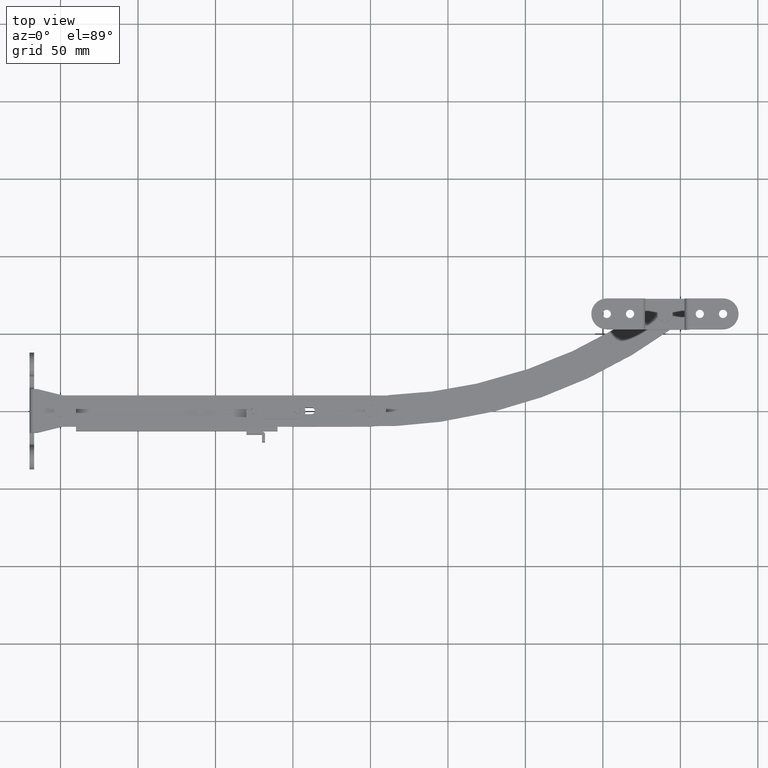
[diagram: clean part render]
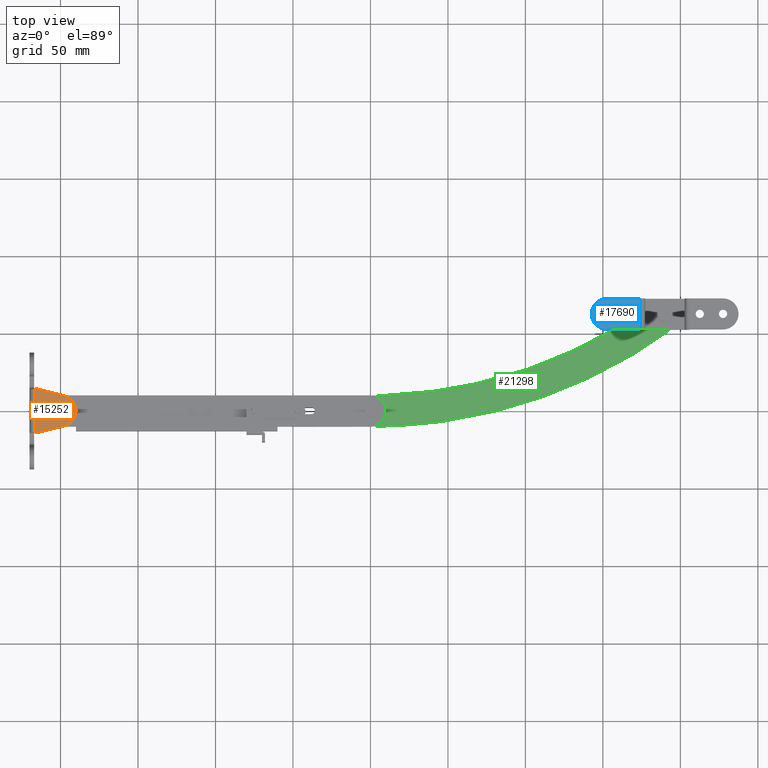
[diagram: same view with three faces highlighted in distinct colors, each labeled with its STEP entity id]
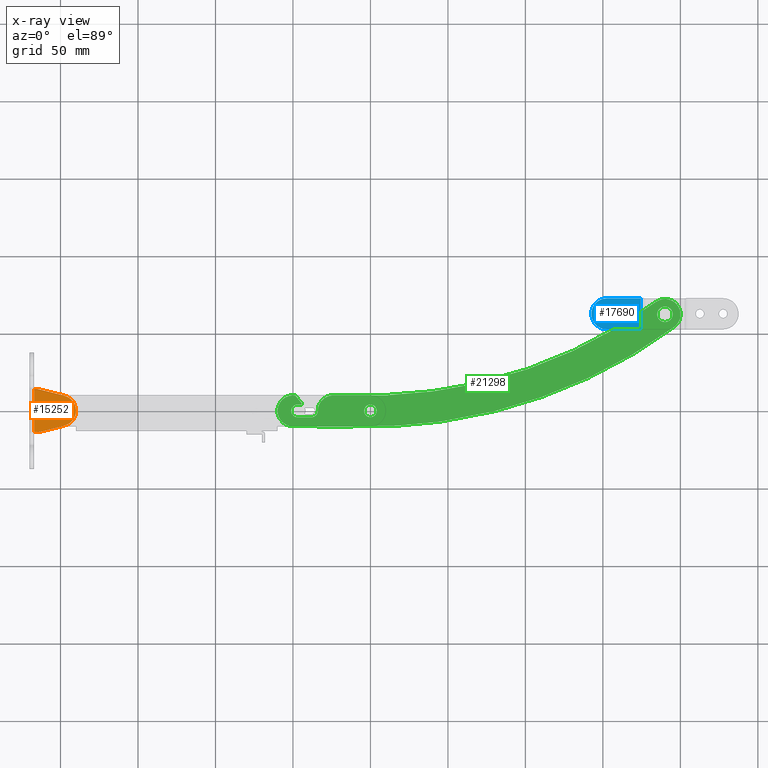
[diagram: x-ray of the same camera — body ghosted, the three highlighted faces saturated]
A machine part, top view with three faces highlighted in distinct colors.
The next image is the same camera in x-ray (body ghosted, the three faces saturated) — at least one of them is partly hidden behind the body in this view.
Their STEP definitions:

[orange] entity #15252 — the highlighted face is a freeform B-spline surface patch.
#13638=CARTESIAN_POINT('',(3.157640842385284,2.455464174142392,11.0));
#13639=VERTEX_POINT('',#13638);
#13640=CARTESIAN_POINT('',(4.0,0.0,11.0));
#13641=VERTEX_POINT('',#13640);
#13642=CARTESIAN_POINT('',(3.157640842385284,2.455464174142392,11.000000000000002));
#13643=CARTESIAN_POINT('',(4.000000000000000,1.372219829529342,11.000000000000002));
#13644=CARTESIAN_POINT('',(4.0,0.0,11.0));
#13652=(BOUNDED_CURVE()B_SPLINE_CURVE(2,(#13642,#13643,#13644),.UNSPECIFIED.,.F.,.U.)B_SPLINE_CURVE_WITH_KNOTS((3,3),(0.893802246703380,1.0),.UNSPECIFIED.)CURVE()GEOMETRIC_REPRESENTATION_ITEM()RATIONAL_B_SPLINE_CURVE((0.856866828135584,0.875581592824784,1.0))REPRESENTATION_ITEM(''));
#13653=EDGE_CURVE('',#13639,#13641,#13652,.T.);
#13696=CARTESIAN_POINT('',(-2.803635695695737,2.853003134561376,11.0));
#13697=VERTEX_POINT('',#13696);
#13703=CARTESIAN_POINT('',(-4.0,0.0,11.0));
#13704=VERTEX_POINT('',#13703);
#13705=CARTESIAN_POINT('',(-4.0,0.0,11.0));
#13706=CARTESIAN_POINT('',(-4.000000000000001,1.677340329298639,11.000000000000002));
#13707=CARTESIAN_POINT('',(-2.803635695695736,2.853003134561376,11.0));
#13715=(BOUNDED_CURVE()B_SPLINE_CURVE(2,(#13705,#13706,#13707),.UNSPECIFIED.,.F.,.U.)B_SPLINE_CURVE_WITH_KNOTS((3,3),(0.500000000000000,0.626316829599056),.UNSPECIFIED.)CURVE()GEOMETRIC_REPRESENTATION_ITEM()RATIONAL_B_SPLINE_CURVE((1.0,0.852010628753688,0.853569643028911))REPRESENTATION_ITEM(''));
#13716=EDGE_CURVE('',#13704,#13697,#13715,.T.);
#13718=CARTESIAN_POINT('',(4.0,0.0,11.0));
#13719=CARTESIAN_POINT('',(4.000000000000000,-4.000000000000000,11.0));
#13720=CARTESIAN_POINT('',(0.0,-4.0,11.0));
#13721=CARTESIAN_POINT('',(-4.000000000000000,-4.000000000000000,11.0));
#13722=CARTESIAN_POINT('',(-4.0,0.0,11.0));
#13730=(BOUNDED_CURVE()B_SPLINE_CURVE(2,(#13718,#13719,#13720,#13721,#13722),.UNSPECIFIED.,.F.,.U.)B_SPLINE_CURVE_WITH_KNOTS((3,2,3),(0.0,0.250000000000000,0.500000000000000),.UNSPECIFIED.)CURVE()GEOMETRIC_REPRESENTATION_ITEM()RATIONAL_B_SPLINE_CURVE((1.0,0.707106781186548,1.0,0.707106781186548,1.0))REPRESENTATION_ITEM(''));
#13731=EDGE_CURVE('',#13641,#13704,#13730,.T.);
#13754=CARTESIAN_POINT('',(-2.803635695695736,2.853003134561376,11.0));
#13755=CARTESIAN_POINT('',(-1.636442091530063,4.000000000000001,10.999999999999998));
#13756=CARTESIAN_POINT('',(0.0,4.0,11.0));
#13757=CARTESIAN_POINT('',(1.956569354088311,4.0,11.000000000000002));
#13758=CARTESIAN_POINT('',(3.157640842385284,2.455464174142392,11.000000000000002));
#13766=(BOUNDED_CURVE()B_SPLINE_CURVE(2,(#13754,#13755,#13756,#13757,#13758),.UNSPECIFIED.,.F.,.U.)B_SPLINE_CURVE_WITH_KNOTS((3,2,3),(0.626316829599056,0.750000000000000,0.893802246703380),.UNSPECIFIED.)CURVE()GEOMETRIC_REPRESENTATION_ITEM()RATIONAL_B_SPLINE_CURVE((0.853569643028911,0.855096152432859,1.0,0.831525188361763,0.856866828135584))REPRESENTATION_ITEM(''));
#13767=EDGE_CURVE('',#13697,#13639,#13766,.T.);
#13900=CARTESIAN_POINT('',(-17.0,-14.0,11.0));
#13901=VERTEX_POINT('',#13900);
#13915=CARTESIAN_POINT('',(-17.0,14.0,11.0));
#13916=VERTEX_POINT('',#13915);
#13917=CARTESIAN_POINT('',(-17.0,14.0,11.0));
#13918=CARTESIAN_POINT('',(-17.0,-14.0,11.0));
#13919=QUASI_UNIFORM_CURVE('',1,(#13917,#13918),.UNSPECIFIED.,.F.,.U.);
#13920=EDGE_CURVE('',#13916,#13901,#13919,.T.);
#14079=CARTESIAN_POINT('',(-15.000076807082349,14.0,11.0));
#14080=VERTEX_POINT('',#14079);
#14081=CARTESIAN_POINT('',(2.410058711234305,9.705236576632409,11.0));
#14082=VERTEX_POINT('',#14081);
#14083=CARTESIAN_POINT('',(-15.000076807082349,14.0,11.0));
#14084=CARTESIAN_POINT('',(2.410058711234305,9.705236576632409,11.0));
#14085=QUASI_UNIFORM_CURVE('',1,(#14083,#14084),.UNSPECIFIED.,.F.,.U.);
#14086=EDGE_CURVE('',#14080,#14082,#14085,.T.);
#14115=CARTESIAN_POINT('',(2.395019000000000,-9.708954000000000,11.0));
#14116=VERTEX_POINT('',#14115);
#14117=CARTESIAN_POINT('',(-15.000045999999999,-14.0,11.0));
#14118=VERTEX_POINT('',#14117);
#14119=CARTESIAN_POINT('',(2.395019000000000,-9.708954000000000,11.0));
#14120=CARTESIAN_POINT('',(-15.000045999999999,-14.0,11.0));
#14121=QUASI_UNIFORM_CURVE('',1,(#14119,#14120),.UNSPECIFIED.,.F.,.U.);
#14122=EDGE_CURVE('',#14116,#14118,#14121,.T.);
#14164=CARTESIAN_POINT('',(2.410058711234305,9.705236576632409,11.0));
#14165=CARTESIAN_POINT('',(10.006059581398373,7.818955515734333,11.0));
#14166=CARTESIAN_POINT('',(9.999996423751082,-0.007743828875747,11.0));
#14167=CARTESIAN_POINT('',(9.993933266103793,-7.834443173485833,11.0));
#14168=CARTESIAN_POINT('',(2.395019000000000,-9.708954000000000,11.0));
#14176=(BOUNDED_CURVE()B_SPLINE_CURVE(2,(#14164,#14165,#14166,#14167,#14168),.UNSPECIFIED.,.F.,.U.)B_SPLINE_CURVE_WITH_KNOTS((3,2,3),(0.0,0.500000000000000,1.0),.UNSPECIFIED.)CURVE()GEOMETRIC_REPRESENTATION_ITEM()RATIONAL_B_SPLINE_CURVE((1.0,0.787481433194190,1.0,0.787481433194190,1.0))REPRESENTATION_ITEM(''));
#14177=EDGE_CURVE('',#14082,#14116,#14176,.T.);
#15212=CARTESIAN_POINT('',(-15.000045999999999,-14.0,11.0));
#15213=CARTESIAN_POINT('',(-17.0,-14.0,11.0));
#15214=QUASI_UNIFORM_CURVE('',1,(#15212,#15213),.UNSPECIFIED.,.F.,.U.);
#15215=EDGE_CURVE('',#14118,#13901,#15214,.T.);
#15229=CARTESIAN_POINT('',(-18.348649769035131,-15.398599945730570,11.0));
#15230=CARTESIAN_POINT('',(-18.348649769035131,15.398600696749090,11.0));
#15231=CARTESIAN_POINT('',(11.348646916982551,-15.398599945730570,11.0));
#15232=CARTESIAN_POINT('',(11.348646916982551,15.398600696749090,11.0));
#15233=B_SPLINE_SURFACE_WITH_KNOTS('',1,1,((#15229,#15231),(#15230,#15232)),.UNSPECIFIED.,.F.,.F.,.U.,(2,2),(2,2),(0.0,30.797200642479670),(0.0,29.697296686017690),.UNSPECIFIED.);
#15234=CARTESIAN_POINT('',(-15.000076807082349,14.0,11.0));
#15235=CARTESIAN_POINT('',(-17.0,14.0,11.0));
#15236=QUASI_UNIFORM_CURVE('',1,(#15234,#15235),.UNSPECIFIED.,.F.,.U.);
#15237=EDGE_CURVE('',#14080,#13916,#15236,.T.);
#15238=ORIENTED_EDGE('',*,*,#15237,.T.);
#15239=ORIENTED_EDGE('',*,*,#13920,.T.);
#15240=ORIENTED_EDGE('',*,*,#15215,.F.);
#15241=ORIENTED_EDGE('',*,*,#14122,.F.);
#15242=ORIENTED_EDGE('',*,*,#14177,.F.);
#15243=ORIENTED_EDGE('',*,*,#14086,.F.);
#15244=EDGE_LOOP('',(#15238,#15239,#15240,#15241,#15242,#15243));
#15245=FACE_OUTER_BOUND('',#15244,.T.);
#15246=ORIENTED_EDGE('',*,*,#13731,.T.);
#15247=ORIENTED_EDGE('',*,*,#13716,.T.);
#15248=ORIENTED_EDGE('',*,*,#13767,.T.);
#15249=ORIENTED_EDGE('',*,*,#13653,.T.);
#15250=EDGE_LOOP('',(#15246,#15247,#15248,#15249));
#15251=FACE_BOUND('',#15250,.T.);
#15252=ADVANCED_FACE('',(#15245,#15251),#15233,.F.);

[blue] entity #17690 — the highlighted face is a freeform B-spline surface patch.
#15709=CARTESIAN_POINT('',(352.701450635846810,59.684120784553983,20.0));
#15710=VERTEX_POINT('',#15709);
#15716=CARTESIAN_POINT('',(355.189671999999970,62.329178000000098,20.0));
#15717=VERTEX_POINT('',#15716);
#15718=CARTESIAN_POINT('',(355.189671999999970,62.329178000000098,20.0));
#15719=CARTESIAN_POINT('',(355.189672000000090,59.836306934180520,20.000000000000007));
#15720=CARTESIAN_POINT('',(352.701450635846750,59.684120784553983,20.0));
#15728=(BOUNDED_CURVE()B_SPLINE_CURVE(2,(#15718,#15719,#15720),.UNSPECIFIED.,.F.,.U.)B_SPLINE_CURVE_WITH_KNOTS((3,3),(0.500000000000000,0.739332961448815),.UNSPECIFIED.)CURVE()GEOMETRIC_REPRESENTATION_ITEM()RATIONAL_B_SPLINE_CURVE((1.0,0.719603994212403,0.976072039973323))REPRESENTATION_ITEM(''));
#15729=EDGE_CURVE('',#15717,#15710,#15728,.T.);
#15731=CARTESIAN_POINT('',(352.226881271014580,64.960653244014509,20.0));
#15732=VERTEX_POINT('',#15731);
#15733=CARTESIAN_POINT('',(352.226881271014520,64.960653244014523,19.999999999999996));
#15734=CARTESIAN_POINT('',(352.382728075701890,64.979178000000090,20.000000000000004));
#15735=CARTESIAN_POINT('',(352.539672000000110,64.979178000000090,20.0));
#15736=CARTESIAN_POINT('',(355.189672000000140,64.979178000000090,19.999999999999996));
#15737=CARTESIAN_POINT('',(355.189671999999970,62.329178000000098,20.0));
#15745=(BOUNDED_CURVE()B_SPLINE_CURVE(2,(#15733,#15734,#15735,#15736,#15737),.UNSPECIFIED.,.F.,.U.)B_SPLINE_CURVE_WITH_KNOTS((3,2,3),(0.229562472597877,0.250000000000000,0.500000000000000),.UNSPECIFIED.)CURVE()GEOMETRIC_REPRESENTATION_ITEM()RATIONAL_B_SPLINE_CURVE((0.956026752389025,0.976055947258416,1.0,0.707106781186548,1.0))REPRESENTATION_ITEM(''));
#15746=EDGE_CURVE('',#15732,#15717,#15745,.T.);
#15776=CARTESIAN_POINT('',(349.889672000000020,62.329178000000098,20.0));
#15777=VERTEX_POINT('',#15776);
#15778=CARTESIAN_POINT('',(349.889672000000020,62.329178000000098,20.0));
#15779=CARTESIAN_POINT('',(349.889672000000080,64.682840480899756,19.999999999999996));
#15780=CARTESIAN_POINT('',(352.226881271014690,64.960653244014509,20.000000000000004));
#15788=(BOUNDED_CURVE()B_SPLINE_CURVE(2,(#15778,#15779,#15780),.UNSPECIFIED.,.F.,.U.)B_SPLINE_CURVE_WITH_KNOTS((3,3),(0.0,0.229562472597877),.UNSPECIFIED.)CURVE()GEOMETRIC_REPRESENTATION_ITEM()RATIONAL_B_SPLINE_CURVE((1.0,0.731050833928131,0.956026752389025))REPRESENTATION_ITEM(''));
#15789=EDGE_CURVE('',#15777,#15732,#15788,.T.);
#15791=CARTESIAN_POINT('',(352.701450635846750,59.684120784553983,20.0));
#15792=CARTESIAN_POINT('',(352.620636828837690,59.679178000000100,20.000000000000004));
#15793=CARTESIAN_POINT('',(352.539672000000110,59.679178000000100,20.0));
#15794=CARTESIAN_POINT('',(349.889671999999960,59.679178000000100,19.999999999999996));
#15795=CARTESIAN_POINT('',(349.889672000000020,62.329178000000098,20.0));
#15803=(BOUNDED_CURVE()B_SPLINE_CURVE(2,(#15791,#15792,#15793,#15794,#15795),.UNSPECIFIED.,.F.,.U.)B_SPLINE_CURVE_WITH_KNOTS((3,2,3),(0.739332961448815,0.750000000000000,1.0),.UNSPECIFIED.)CURVE()GEOMETRIC_REPRESENTATION_ITEM()RATIONAL_B_SPLINE_CURVE((0.976072039973323,0.987502786974145,1.0,0.707106781186548,1.0))REPRESENTATION_ITEM(''));
#15804=EDGE_CURVE('',#15710,#15777,#15803,.T.);
#16037=CARTESIAN_POINT('',(367.701450635846700,59.684120784553983,20.0));
#16038=VERTEX_POINT('',#16037);
#16044=CARTESIAN_POINT('',(370.189671999999970,62.329178000000098,20.0));
#16045=VERTEX_POINT('',#16044);
#16046=CARTESIAN_POINT('',(370.189671999999970,62.329178000000098,20.0));
#16047=CARTESIAN_POINT('',(370.189671999999920,59.836306934180527,20.000000000000004));
#16048=CARTESIAN_POINT('',(367.701450635846700,59.684120784553983,20.000000000000004));
#16056=(BOUNDED_CURVE()B_SPLINE_CURVE(2,(#16046,#16047,#16048),.UNSPECIFIED.,.F.,.U.)B_SPLINE_CURVE_WITH_KNOTS((3,3),(0.500000000000000,0.739332961448813),.UNSPECIFIED.)CURVE()GEOMETRIC_REPRESENTATION_ITEM()RATIONAL_B_SPLINE_CURVE((1.0,0.719603994212405,0.976072039973318))REPRESENTATION_ITEM(''));
#16057=EDGE_CURVE('',#16045,#16038,#16056,.T.);
#16059=CARTESIAN_POINT('',(367.226881271014580,64.960653244014509,20.0));
#16060=VERTEX_POINT('',#16059);
#16061=CARTESIAN_POINT('',(367.226881271014520,64.960653244014509,20.0));
#16062=CARTESIAN_POINT('',(367.382728075701830,64.979178000000090,20.000000000000004));
#16063=CARTESIAN_POINT('',(367.539672000000000,64.979178000000090,20.0));
#16064=CARTESIAN_POINT('',(370.189671999999920,64.979178000000090,19.999999999999996));
#16065=CARTESIAN_POINT('',(370.189671999999970,62.329178000000098,20.0));
#16073=(BOUNDED_CURVE()B_SPLINE_CURVE(2,(#16061,#16062,#16063,#16064,#16065),.UNSPECIFIED.,.F.,.U.)B_SPLINE_CURVE_WITH_KNOTS((3,2,3),(0.229562472597879,0.250000000000000,0.500000000000000),.UNSPECIFIED.)CURVE()GEOMETRIC_REPRESENTATION_ITEM()RATIONAL_B_SPLINE_CURVE((0.956026752389028,0.976055947258418,1.0,0.707106781186548,1.0))REPRESENTATION_ITEM(''));
#16074=EDGE_CURVE('',#16060,#16045,#16073,.T.);
#16104=CARTESIAN_POINT('',(364.889672000000020,62.329178000000098,20.0));
#16105=VERTEX_POINT('',#16104);
#16106=CARTESIAN_POINT('',(364.889672000000020,62.329178000000098,20.0));
#16107=CARTESIAN_POINT('',(364.889672000000020,64.682840480899785,19.999999999999996));
#16108=CARTESIAN_POINT('',(367.226881271014580,64.960653244014509,19.999999999999996));
#16116=(BOUNDED_CURVE()B_SPLINE_CURVE(2,(#16106,#16107,#16108),.UNSPECIFIED.,.F.,.U.)B_SPLINE_CURVE_WITH_KNOTS((3,3),(0.0,0.229562472597879),.UNSPECIFIED.)CURVE()GEOMETRIC_REPRESENTATION_ITEM()RATIONAL_B_SPLINE_CURVE((1.0,0.731050833928129,0.956026752389028))REPRESENTATION_ITEM(''));
#16117=EDGE_CURVE('',#16105,#16060,#16116,.T.);
#16119=CARTESIAN_POINT('',(367.701450635846700,59.684120784553976,20.0));
#16120=CARTESIAN_POINT('',(367.620636828837630,59.679178000000100,20.000000000000004));
#16121=CARTESIAN_POINT('',(367.539672000000000,59.679178000000100,20.0));
#16122=CARTESIAN_POINT('',(364.889671999999960,59.679178000000100,19.999999999999996));
#16123=CARTESIAN_POINT('',(364.889672000000020,62.329178000000098,20.0));
#16131=(BOUNDED_CURVE()B_SPLINE_CURVE(2,(#16119,#16120,#16121,#16122,#16123),.UNSPECIFIED.,.F.,.U.)B_SPLINE_CURVE_WITH_KNOTS((3,2,3),(0.739332961448812,0.750000000000000,1.0),.UNSPECIFIED.)CURVE()GEOMETRIC_REPRESENTATION_ITEM()RATIONAL_B_SPLINE_CURVE((0.976072039973318,0.987502786974142,1.0,0.707106781186548,1.0))REPRESENTATION_ITEM(''));
#16132=EDGE_CURVE('',#16038,#16105,#16131,.T.);
#17087=CARTESIAN_POINT('',(352.539672000000110,52.329178000000091,20.0));
#17088=VERTEX_POINT('',#17087);
#17094=CARTESIAN_POINT('',(352.539672000000110,72.329178000000084,20.0));
#17095=VERTEX_POINT('',#17094);
#17096=CARTESIAN_POINT('',(352.539672000000110,72.329178000000198,20.0));
#17097=CARTESIAN_POINT('',(342.539672000000000,72.329178000000198,19.999999999999996));
#17098=CARTESIAN_POINT('',(342.539672000000000,62.329178000000198,20.0));
#17099=CARTESIAN_POINT('',(342.539672000000000,52.329178000000198,19.999999999999996));
#17100=CARTESIAN_POINT('',(352.539672000000110,52.329178000000198,20.0));
#17108=(BOUNDED_CURVE()B_SPLINE_CURVE(2,(#17096,#17097,#17098,#17099,#17100),.UNSPECIFIED.,.F.,.U.)B_SPLINE_CURVE_WITH_KNOTS((3,2,3),(0.0,0.500000000000000,1.0),.UNSPECIFIED.)CURVE()GEOMETRIC_REPRESENTATION_ITEM()RATIONAL_B_SPLINE_CURVE((1.0,0.707106781186548,1.0,0.707106781186548,1.0))REPRESENTATION_ITEM(''));
#17109=EDGE_CURVE('',#17095,#17088,#17108,.T.);
#17124=CARTESIAN_POINT('',(374.289672209439520,52.329178000000091,20.0));
#17125=VERTEX_POINT('',#17124);
#17126=CARTESIAN_POINT('',(374.289672209439520,52.329178000000091,20.0));
#17127=CARTESIAN_POINT('',(352.539672000000110,52.329178000000091,20.0));
#17128=QUASI_UNIFORM_CURVE('',1,(#17126,#17127),.UNSPECIFIED.,.F.,.U.);
#17129=EDGE_CURVE('',#17125,#17088,#17128,.T.);
#17274=CARTESIAN_POINT('',(374.289672209439520,72.329178000000184,20.0));
#17275=VERTEX_POINT('',#17274);
#17276=CARTESIAN_POINT('',(374.289672209439520,72.329178000000184,20.0));
#17277=CARTESIAN_POINT('',(352.539672000000110,72.329178000000084,20.0));
#17278=QUASI_UNIFORM_CURVE('',1,(#17276,#17277),.UNSPECIFIED.,.F.,.U.);
#17279=EDGE_CURVE('',#17275,#17095,#17278,.T.);
#17424=CARTESIAN_POINT('',(374.289672209439520,72.329178000000184,20.0));
#17425=CARTESIAN_POINT('',(374.289672209439520,52.329178000000091,20.0));
#17426=QUASI_UNIFORM_CURVE('',1,(#17424,#17425),.UNSPECIFIED.,.F.,.U.);
#17427=EDGE_CURVE('',#17275,#17125,#17426,.T.);
#17667=CARTESIAN_POINT('',(340.953760445217820,51.330177851018277,20.0));
#17668=CARTESIAN_POINT('',(375.875585467427190,51.330177851018277,20.0));
#17669=CARTESIAN_POINT('',(340.953760445217820,73.328178506609873,20.0));
#17670=CARTESIAN_POINT('',(375.875585467427190,73.328178506609873,20.0));
#17671=B_SPLINE_SURFACE_WITH_KNOTS('',1,1,((#17667,#17669),(#17668,#17670)),.UNSPECIFIED.,.F.,.F.,.U.,(2,2),(2,2),(0.0,34.921825022209362),(0.0,21.998000655591600),.UNSPECIFIED.);
#17672=ORIENTED_EDGE('',*,*,#17109,.T.);
#17673=ORIENTED_EDGE('',*,*,#17129,.F.);
#17674=ORIENTED_EDGE('',*,*,#17427,.F.);
#17675=ORIENTED_EDGE('',*,*,#17279,.T.);
#17676=EDGE_LOOP('',(#17672,#17673,#17674,#17675));
#17677=FACE_OUTER_BOUND('',#17676,.T.);
#17678=ORIENTED_EDGE('',*,*,#16057,.T.);
#17679=ORIENTED_EDGE('',*,*,#16132,.T.);
#17680=ORIENTED_EDGE('',*,*,#16117,.T.);
#17681=ORIENTED_EDGE('',*,*,#16074,.T.);
#17682=EDGE_LOOP('',(#17678,#17679,#17680,#17681));
#17683=FACE_BOUND('',#17682,.T.);
#17684=ORIENTED_EDGE('',*,*,#15729,.T.);
#17685=ORIENTED_EDGE('',*,*,#15804,.T.);
#17686=ORIENTED_EDGE('',*,*,#15789,.T.);
#17687=ORIENTED_EDGE('',*,*,#15746,.T.);
#17688=EDGE_LOOP('',(#17684,#17685,#17686,#17687));
#17689=FACE_BOUND('',#17688,.T.);
#17690=ADVANCED_FACE('',(#17677,#17683,#17689),#17671,.T.);

[green] entity #21298 — the highlighted face is a freeform B-spline surface patch.
#20117=CARTESIAN_POINT('',(204.049969000000000,0.0,2.499999999999945));
#20118=VERTEX_POINT('',#20117);
#20119=CARTESIAN_POINT('',(200.317728337925300,-4.037515201601261,2.499999999999945));
#20120=VERTEX_POINT('',#20119);
#20121=CARTESIAN_POINT('',(204.049969000000000,0.0,2.499999999999945));
#20122=CARTESIAN_POINT('',(204.049968999999950,-3.743781490792471,2.499999999999945));
#20123=CARTESIAN_POINT('',(200.317728337925330,-4.037515201601262,2.499999999999945));
#20131=(BOUNDED_CURVE()B_SPLINE_CURVE(2,(#20121,#20122,#20123),.UNSPECIFIED.,.F.,.U.)B_SPLINE_CURVE_WITH_KNOTS((3,3),(0.0,0.236331300613446),.UNSPECIFIED.)CURVE()GEOMETRIC_REPRESENTATION_ITEM()RATIONAL_B_SPLINE_CURVE((1.0,0.723120658627833,0.969723356131493))REPRESENTATION_ITEM(''));
#20132=EDGE_CURVE('',#20118,#20120,#20131,.T.);
#20134=CARTESIAN_POINT('',(199.682209662074710,4.037515201601259,2.499999999999945));
#20135=VERTEX_POINT('',#20134);
#20136=CARTESIAN_POINT('',(199.682209662074630,4.037515201601259,2.499999999999945));
#20137=CARTESIAN_POINT('',(199.840844066390300,4.050000000000000,2.499999999999946));
#20138=CARTESIAN_POINT('',(199.999968999999990,4.050000000000000,2.499999999999945));
#20139=CARTESIAN_POINT('',(204.049968999999980,4.050000000000001,2.499999999999945));
#20140=CARTESIAN_POINT('',(204.049969000000000,0.0,2.499999999999945));
#20148=(BOUNDED_CURVE()B_SPLINE_CURVE(2,(#20136,#20137,#20138,#20139,#20140),.UNSPECIFIED.,.F.,.U.)B_SPLINE_CURVE_WITH_KNOTS((3,2,3),(0.736331300613445,0.750000000000000,1.0),.UNSPECIFIED.)CURVE()GEOMETRIC_REPRESENTATION_ITEM()RATIONAL_B_SPLINE_CURVE((0.969723356131493,0.983986122558714,1.0,0.707106781186548,1.0))REPRESENTATION_ITEM(''));
#20149=EDGE_CURVE('',#20135,#20118,#20148,.T.);
#20216=CARTESIAN_POINT('',(195.949969000000010,0.0,2.499999999999945));
#20217=VERTEX_POINT('',#20216);
#20218=CARTESIAN_POINT('',(200.317728337925270,-4.037515201601262,2.499999999999945));
#20219=CARTESIAN_POINT('',(200.159093933609650,-4.050000000000000,2.499999999999945));
#20220=CARTESIAN_POINT('',(199.999968999999990,-4.050000000000000,2.499999999999945));
#20221=CARTESIAN_POINT('',(195.949969000000010,-4.050000000000001,2.499999999999945));
#20222=CARTESIAN_POINT('',(195.949969000000010,0.0,2.499999999999945));
#20230=(BOUNDED_CURVE()B_SPLINE_CURVE(2,(#20218,#20219,#20220,#20221,#20222),.UNSPECIFIED.,.F.,.U.)B_SPLINE_CURVE_WITH_KNOTS((3,2,3),(0.236331300613446,0.250000000000000,0.500000000000000),.UNSPECIFIED.)CURVE()GEOMETRIC_REPRESENTATION_ITEM()RATIONAL_B_SPLINE_CURVE((0.969723356131494,0.983986122558715,1.0,0.707106781186548,1.0))REPRESENTATION_ITEM(''));
#20231=EDGE_CURVE('',#20120,#20217,#20230,.T.);
#20265=CARTESIAN_POINT('',(195.949969000000010,0.0,2.499999999999945));
#20266=CARTESIAN_POINT('',(195.949968999999980,3.743781490792479,2.499999999999945));
#20267=CARTESIAN_POINT('',(199.682209662074740,4.037515201601259,2.499999999999945));
#20275=(BOUNDED_CURVE()B_SPLINE_CURVE(2,(#20265,#20266,#20267),.UNSPECIFIED.,.F.,.U.)B_SPLINE_CURVE_WITH_KNOTS((3,3),(0.500000000000000,0.736331300613446),.UNSPECIFIED.)CURVE()GEOMETRIC_REPRESENTATION_ITEM()RATIONAL_B_SPLINE_CURVE((1.0,0.723120658627833,0.969723356131494))REPRESENTATION_ITEM(''));
#20276=EDGE_CURVE('',#20217,#20135,#20275,.T.);
#20299=CARTESIAN_POINT('',(395.039672000000000,62.329178000000098,2.499999999999945));
#20300=VERTEX_POINT('',#20299);
#20301=CARTESIAN_POINT('',(390.431967481455620,57.344591331556117,2.499999999999945));
#20302=VERTEX_POINT('',#20301);
#20303=CARTESIAN_POINT('',(395.039672000000000,62.329178000000098,2.499999999999945));
#20304=CARTESIAN_POINT('',(395.039672000000050,57.707225546948074,2.499999999999945));
#20305=CARTESIAN_POINT('',(390.431967481455560,57.344591331556110,2.499999999999945));
#20313=(BOUNDED_CURVE()B_SPLINE_CURVE(2,(#20303,#20304,#20305),.UNSPECIFIED.,.F.,.U.)B_SPLINE_CURVE_WITH_KNOTS((3,3),(0.0,0.236331300439055),.UNSPECIFIED.)CURVE()GEOMETRIC_REPRESENTATION_ITEM()RATIONAL_B_SPLINE_CURVE((1.0,0.723120658832144,0.969723355767554))REPRESENTATION_ITEM(''));
#20314=EDGE_CURVE('',#20300,#20302,#20313,.T.);
#20316=CARTESIAN_POINT('',(389.647376518544380,67.313764668444094,2.499999999999945));
#20317=VERTEX_POINT('',#20316);
#20318=CARTESIAN_POINT('',(389.647376518544320,67.313764668444094,2.499999999999945));
#20319=CARTESIAN_POINT('',(389.843221462132190,67.329178000000098,2.499999999999945));
#20320=CARTESIAN_POINT('',(390.039672000000000,67.329178000000098,2.499999999999945));
#20321=CARTESIAN_POINT('',(395.039672000000000,67.329178000000098,2.499999999999945));
#20322=CARTESIAN_POINT('',(395.039672000000000,62.329178000000098,2.499999999999945));
#20330=(BOUNDED_CURVE()B_SPLINE_CURVE(2,(#20318,#20319,#20320,#20321,#20322),.UNSPECIFIED.,.F.,.U.)B_SPLINE_CURVE_WITH_KNOTS((3,2,3),(0.736331300439054,0.750000000000000,1.0),.UNSPECIFIED.)CURVE()GEOMETRIC_REPRESENTATION_ITEM()RATIONAL_B_SPLINE_CURVE((0.969723355767552,0.983986122354402,1.0,0.707106781186548,1.0))REPRESENTATION_ITEM(''));
#20331=EDGE_CURVE('',#20317,#20300,#20330,.T.);
#20398=CARTESIAN_POINT('',(385.039672000000000,62.329178000000098,2.499999999999945));
#20399=VERTEX_POINT('',#20398);
#20400=CARTESIAN_POINT('',(390.431967481455560,57.344591331556117,2.499999999999946));
#20401=CARTESIAN_POINT('',(390.236122537867740,57.329178000000098,2.499999999999945));
#20402=CARTESIAN_POINT('',(390.039672000000000,57.329178000000098,2.499999999999945));
#20403=CARTESIAN_POINT('',(385.039672000000050,57.329178000000084,2.499999999999945));
#20404=CARTESIAN_POINT('',(385.039672000000000,62.329178000000098,2.499999999999945));
#20412=(BOUNDED_CURVE()B_SPLINE_CURVE(2,(#20400,#20401,#20402,#20403,#20404),.UNSPECIFIED.,.F.,.U.)B_SPLINE_CURVE_WITH_KNOTS((3,2,3),(0.236331300439055,0.250000000000000,0.500000000000000),.UNSPECIFIED.)CURVE()GEOMETRIC_REPRESENTATION_ITEM()RATIONAL_B_SPLINE_CURVE((0.969723355767554,0.983986122354403,1.0,0.707106781186548,1.0))REPRESENTATION_ITEM(''));
#20413=EDGE_CURVE('',#20302,#20399,#20412,.T.);
#20447=CARTESIAN_POINT('',(385.039672000000000,62.329178000000098,2.499999999999945));
#20448=CARTESIAN_POINT('',(385.039671999999880,66.951130453052087,2.499999999999945));
#20449=CARTESIAN_POINT('',(389.647376518544430,67.313764668444094,2.499999999999945));
#20457=(BOUNDED_CURVE()B_SPLINE_CURVE(2,(#20447,#20448,#20449),.UNSPECIFIED.,.F.,.U.)B_SPLINE_CURVE_WITH_KNOTS((3,3),(0.500000000000000,0.736331300439054),.UNSPECIFIED.)CURVE()GEOMETRIC_REPRESENTATION_ITEM()RATIONAL_B_SPLINE_CURVE((1.0,0.723120658832145,0.969723355767552))REPRESENTATION_ITEM(''));
#20458=EDGE_CURVE('',#20399,#20317,#20457,.T.);
#20477=CARTESIAN_POINT('',(165.992293828772010,0.003207617239024,2.499999999999945));
#20478=VERTEX_POINT('',#20477);
#20479=CARTESIAN_POINT('',(161.891604911397000,-4.096090723936130,2.499999999999945));
#20480=VERTEX_POINT('',#20479);
#20481=CARTESIAN_POINT('',(165.992293828772290,0.003207617239025,2.499999999999945));
#20482=CARTESIAN_POINT('',(165.991592229996630,-4.096779699219845,2.499999999999944));
#20483=CARTESIAN_POINT('',(161.891604911397000,-4.096090723936151,2.499999999999945));
#20491=(BOUNDED_CURVE()B_SPLINE_CURVE(2,(#20481,#20482,#20483),.UNSPECIFIED.,.F.,.U.)CURVE()GEOMETRIC_REPRESENTATION_ITEM()QUASI_UNIFORM_CURVE()RATIONAL_B_SPLINE_CURVE((1.0,0.707107869744780,1.0))REPRESENTATION_ITEM(''));
#20492=EDGE_CURVE('',#20478,#20480,#20491,.T.);
#20529=CARTESIAN_POINT('',(152.991604576599000,-4.094595138761060,2.499999999999945));
#20530=VERTEX_POINT('',#20529);
#20531=CARTESIAN_POINT('',(152.991604576599000,-4.094595138761060,2.499999999999945));
#20532=CARTESIAN_POINT('',(161.891604911397000,-4.096090723936130,2.499999999999945));
#20533=QUASI_UNIFORM_CURVE('',1,(#20531,#20532),.UNSPECIFIED.,.F.,.U.);
#20534=EDGE_CURVE('',#20530,#20480,#20533,.T.);
#20570=CARTESIAN_POINT('',(152.992980060619490,4.105426376480540,2.499999999999945));
#20571=VERTEX_POINT('',#20570);
#20572=CARTESIAN_POINT('',(152.991604576599000,-4.094595138761059,2.499999999999945));
#20573=CARTESIAN_POINT('',(150.624451975830340,-4.094211428268318,2.499999999999945));
#20574=CARTESIAN_POINT('',(149.441215692187000,-2.044000834297593,2.499999999999945));
#20575=CARTESIAN_POINT('',(148.257979408543690,0.006209759673132,2.499999999999945));
#20576=CARTESIAN_POINT('',(149.441903436438110,2.056023282590268,2.499999999999945));
#20577=CARTESIAN_POINT('',(150.625827464332620,4.105836805507403,2.499999999999945));
#20578=CARTESIAN_POINT('',(152.992980060619490,4.105426376480549,2.499999999999945));
#20586=(BOUNDED_CURVE()B_SPLINE_CURVE(2,(#20572,#20573,#20574,#20575,#20576,#20577,#20578),.UNSPECIFIED.,.F.,.U.)B_SPLINE_CURVE_WITH_KNOTS((3,2,2,3),(0.0,0.333333333333333,0.666666666666667,1.0),.UNSPECIFIED.)CURVE()GEOMETRIC_REPRESENTATION_ITEM()RATIONAL_B_SPLINE_CURVE((1.0,0.866024463182579,1.0,0.866024463182579,1.0,0.866024463182579,1.0))REPRESENTATION_ITEM(''));
#20587=EDGE_CURVE('',#20530,#20571,#20586,.T.);
#20622=CARTESIAN_POINT('',(155.494548496868990,4.104992641747895,2.499999999999945));
#20623=VERTEX_POINT('',#20622);
#20624=CARTESIAN_POINT('',(155.494548496868990,4.104992641747895,2.499999999999945));
#20625=CARTESIAN_POINT('',(152.992980060619490,4.105426376480540,2.499999999999945));
#20626=QUASI_UNIFORM_CURVE('',1,(#20624,#20625),.UNSPECIFIED.,.F.,.U.);
#20627=EDGE_CURVE('',#20623,#20571,#20626,.T.);
#20650=CARTESIAN_POINT('',(155.495111645176000,5.104995582170590,2.499999999999945));
#20651=VERTEX_POINT('',#20650);
#20652=CARTESIAN_POINT('',(155.495111645176000,5.104995582170590,2.499999999999945));
#20653=CARTESIAN_POINT('',(155.494548496868990,4.104992641747895,2.499999999999945));
#20654=QUASI_UNIFORM_CURVE('',1,(#20652,#20653),.UNSPECIFIED.,.F.,.U.);
#20655=EDGE_CURVE('',#20651,#20623,#20654,.T.);
#20678=CARTESIAN_POINT('',(151.604273395805510,9.875120801763650,2.499999999999945));
#20679=VERTEX_POINT('',#20678);
#20680=CARTESIAN_POINT('',(151.604273395805510,9.875120801763650,2.499999999999945));
#20681=CARTESIAN_POINT('',(155.495111645176000,5.104995582170590,2.499999999999945));
#20682=QUASI_UNIFORM_CURVE('',1,(#20680,#20681),.UNSPECIFIED.,.F.,.U.);
#20683=EDGE_CURVE('',#20679,#20651,#20682,.T.);
#20719=CARTESIAN_POINT('',(149.967174670438000,-9.994073230658492,2.499999999999945));
#20720=VERTEX_POINT('',#20719);
#20721=CARTESIAN_POINT('',(149.967174670438000,-9.994073230658492,2.499999999999945));
#20722=CARTESIAN_POINT('',(143.833896049889350,-9.978649185365187,2.499999999999946));
#20723=CARTESIAN_POINT('',(141.067397372090600,-4.504726496452794,2.499999999999945));
#20724=CARTESIAN_POINT('',(138.300898694291790,0.969196192459599,2.499999999999946));
#20725=CARTESIAN_POINT('',(141.926040939578090,5.916487192582053,2.499999999999945));
#20726=CARTESIAN_POINT('',(145.551183184864410,10.863778192704507,2.499999999999946));
#20727=CARTESIAN_POINT('',(151.604273395805510,9.875120801763622,2.499999999999945));
#20735=(BOUNDED_CURVE()B_SPLINE_CURVE(2,(#20721,#20722,#20723,#20724,#20725,#20726,#20727),.UNSPECIFIED.,.F.,.U.)B_SPLINE_CURVE_WITH_KNOTS((3,2,2,3),(0.0,0.333333333333333,0.666666666666667,1.0),.UNSPECIFIED.)CURVE()GEOMETRIC_REPRESENTATION_ITEM()RATIONAL_B_SPLINE_CURVE((1.0,0.852439200869313,1.0,0.852439200869313,1.0,0.852439200869313,1.0))REPRESENTATION_ITEM(''));
#20736=EDGE_CURVE('',#20720,#20679,#20735,.T.);
#20771=CARTESIAN_POINT('',(188.631841210929510,-10.000602722502681,2.499999999999945));
#20772=VERTEX_POINT('',#20771);
#20773=CARTESIAN_POINT('',(188.631841210929510,-10.000602722502681,2.499999999999945));
#20774=CARTESIAN_POINT('',(149.967174670438000,-9.994073230658492,2.499999999999945));
#20775=QUASI_UNIFORM_CURVE('',1,(#20773,#20774),.UNSPECIFIED.,.F.,.U.);
#20776=EDGE_CURVE('',#20772,#20720,#20775,.T.);
#20812=CARTESIAN_POINT('',(188.635328099598010,-9.800662946603380,2.499999999999945));
#20813=VERTEX_POINT('',#20812);
#20814=CARTESIAN_POINT('',(188.635328099598010,-9.800662946603383,2.499999999999945));
#20815=CARTESIAN_POINT('',(188.733556743992860,-9.804073535669447,2.499999999999945));
#20816=CARTESIAN_POINT('',(188.731842894739800,-9.902346428260298,2.499999999999945));
#20817=CARTESIAN_POINT('',(188.730129045486620,-10.000619320851149,2.499999999999945));
#20818=CARTESIAN_POINT('',(188.631841210929510,-10.000602722502689,2.499999999999945));
#20826=(BOUNDED_CURVE()B_SPLINE_CURVE(2,(#20814,#20815,#20816,#20817,#20818),.UNSPECIFIED.,.F.,.U.)B_SPLINE_CURVE_WITH_KNOTS((3,2,3),(0.0,0.500000000000000,1.0),.UNSPECIFIED.)CURVE()GEOMETRIC_REPRESENTATION_ITEM()RATIONAL_B_SPLINE_CURVE((1.0,0.713185878240497,1.0,0.713185878240497,1.0))REPRESENTATION_ITEM(''));
#20827=EDGE_CURVE('',#20813,#20772,#20826,.T.);
#20869=CARTESIAN_POINT('',(395.932670892218030,54.131489166774003,2.499999999999945));
#20870=VERTEX_POINT('',#20869);
#20871=CARTESIAN_POINT('',(395.932670892218080,54.131489166774067,2.499999999999945));
#20872=CARTESIAN_POINT('',(303.371207799041030,-13.784398436252850,2.499999999999945));
#20873=CARTESIAN_POINT('',(188.635328099598010,-9.800662946603367,2.499999999999945));
#20881=(BOUNDED_CURVE()B_SPLINE_CURVE(2,(#20871,#20872,#20873),.UNSPECIFIED.,.F.,.U.)CURVE()GEOMETRIC_REPRESENTATION_ITEM()QUASI_UNIFORM_CURVE()RATIONAL_B_SPLINE_CURVE((1.0,0.944784642176282,1.0))REPRESENTATION_ITEM(''));
#20882=EDGE_CURVE('',#20870,#20813,#20881,.T.);
#20922=CARTESIAN_POINT('',(395.946060059229010,54.143288464509403,2.499999999999945));
#20923=VERTEX_POINT('',#20922);
#20924=CARTESIAN_POINT('',(395.946060059229180,54.143288464509183,2.499999999999945));
#20925=CARTESIAN_POINT('',(395.939894020984180,54.136789052763667,2.499999999999945));
#20926=CARTESIAN_POINT('',(395.932670892218030,54.131489166774010,2.499999999999945));
#20934=(BOUNDED_CURVE()B_SPLINE_CURVE(2,(#20924,#20925,#20926),.UNSPECIFIED.,.F.,.U.)CURVE()GEOMETRIC_REPRESENTATION_ITEM()QUASI_UNIFORM_CURVE()RATIONAL_B_SPLINE_CURVE((1.0,0.996010878199911,1.0))REPRESENTATION_ITEM(''));
#20935=EDGE_CURVE('',#20923,#20870,#20934,.T.);
#20975=CARTESIAN_POINT('',(395.959951515913020,54.155453915347202,2.499999999999945));
#20976=VERTEX_POINT('',#20975);
#20977=CARTESIAN_POINT('',(395.946060059229010,54.143288464509432,2.499999999999945));
#20978=CARTESIAN_POINT('',(395.952441778948750,54.150015218781007,2.499999999999945));
#20979=CARTESIAN_POINT('',(395.959951515912910,54.155453915347280,2.499999999999945));
#20987=(BOUNDED_CURVE()B_SPLINE_CURVE(2,(#20977,#20978,#20979),.UNSPECIFIED.,.F.,.U.)CURVE()GEOMETRIC_REPRESENTATION_ITEM()QUASI_UNIFORM_CURVE()RATIONAL_B_SPLINE_CURVE((1.0,0.995728743648471,1.0))REPRESENTATION_ITEM(''));
#20988=EDGE_CURVE('',#20923,#20976,#20987,.T.);
#21032=CARTESIAN_POINT('',(384.371410625373020,70.454998101325700,2.499999999999945));
#21033=VERTEX_POINT('',#21032);
#21034=CARTESIAN_POINT('',(384.371410625373410,70.454998101325245,2.499999999999945));
#21035=CARTESIAN_POINT('',(392.500457132577200,76.128186322258287,2.499999999999945));
#21036=CARTESIAN_POINT('',(398.244504629345900,68.049053939305011,2.499999999999945));
#21037=CARTESIAN_POINT('',(403.988552126114430,59.969921556351750,2.499999999999945));
#21038=CARTESIAN_POINT('',(395.959951515913020,54.155453915347103,2.499999999999945));
#21046=(BOUNDED_CURVE()B_SPLINE_CURVE(2,(#21034,#21035,#21036,#21037,#21038),.UNSPECIFIED.,.F.,.U.)B_SPLINE_CURVE_WITH_KNOTS((3,2,3),(0.0,0.500000000000000,1.0),.UNSPECIFIED.)CURVE()GEOMETRIC_REPRESENTATION_ITEM()RATIONAL_B_SPLINE_CURVE((1.0,0.710191339439909,1.0,0.710191339439909,1.0))REPRESENTATION_ITEM(''));
#21047=EDGE_CURVE('',#21033,#20976,#21046,.T.);
#21089=CARTESIAN_POINT('',(211.270921621366990,10.199935711989699,2.499999999999945));
#21090=VERTEX_POINT('',#21089);
#21091=CARTESIAN_POINT('',(384.371410625373070,70.454998101325771,2.499999999999945));
#21092=CARTESIAN_POINT('',(307.111512999859880,13.638197597696639,2.499999999999945));
#21093=CARTESIAN_POINT('',(211.270921621366990,10.199935711989680,2.499999999999945));
#21101=(BOUNDED_CURVE()B_SPLINE_CURVE(2,(#21091,#21092,#21093),.UNSPECIFIED.,.F.,.U.)CURVE()GEOMETRIC_REPRESENTATION_ITEM()QUASI_UNIFORM_CURVE()RATIONAL_B_SPLINE_CURVE((1.0,0.955597511157702,1.0))REPRESENTATION_ITEM(''));
#21102=EDGE_CURVE('',#21033,#21090,#21101,.T.);
#21146=CARTESIAN_POINT('',(211.274506794878990,10.0,2.499999999999945));
#21147=VERTEX_POINT('',#21146);
#21148=CARTESIAN_POINT('',(211.274506794878990,10.000000000000011,2.499999999999945));
#21149=CARTESIAN_POINT('',(211.176283882151210,10.000000000000005,2.499999999999945));
#21150=CARTESIAN_POINT('',(211.174522868173310,10.098207125069930,2.499999999999945));
#21151=CARTESIAN_POINT('',(211.172761854195410,10.196414250139854,2.499999999999945));
#21152=CARTESIAN_POINT('',(211.270921621366990,10.199935711989699,2.499999999999945));
#21160=(BOUNDED_CURVE()B_SPLINE_CURVE(2,(#21148,#21149,#21150,#21151,#21152),.UNSPECIFIED.,.F.,.U.)B_SPLINE_CURVE_WITH_KNOTS((3,2,3),(0.0,0.500000000000000,1.0),.UNSPECIFIED.)CURVE()GEOMETRIC_REPRESENTATION_ITEM()RATIONAL_B_SPLINE_CURVE((1.0,0.713417391609112,1.0,0.713417391609112,1.0))REPRESENTATION_ITEM(''));
#21161=EDGE_CURVE('',#21147,#21090,#21160,.T.);
#21194=CARTESIAN_POINT('',(175.819303307804490,10.0,2.499999999999945));
#21195=VERTEX_POINT('',#21194);
#21196=CARTESIAN_POINT('',(175.819303307804490,10.0,2.499999999999945));
#21197=CARTESIAN_POINT('',(211.274506794878990,10.0,2.499999999999945));
#21198=QUASI_UNIFORM_CURVE('',1,(#21196,#21197),.UNSPECIFIED.,.F.,.U.);
#21199=EDGE_CURVE('',#21195,#21147,#21198,.T.);
#21231=CARTESIAN_POINT('',(165.992293828772010,0.003207617239020,2.499999999999945));
#21232=CARTESIAN_POINT('',(165.993975411926870,9.830005846870508,2.499999999999945));
#21233=CARTESIAN_POINT('',(175.819303307804490,10.0,2.499999999999945));
#21241=(BOUNDED_CURVE()B_SPLINE_CURVE(2,(#21231,#21232,#21233),.UNSPECIFIED.,.F.,.U.)CURVE()GEOMETRIC_REPRESENTATION_ITEM()QUASI_UNIFORM_CURVE()RATIONAL_B_SPLINE_CURVE((1.0,0.713256662701052,1.0))REPRESENTATION_ITEM(''));
#21242=EDGE_CURVE('',#20478,#21195,#21241,.T.);
#21262=CARTESIAN_POINT('',(127.004306313644800,-14.109187674378020,2.500000000000000));
#21263=CARTESIAN_POINT('',(413.086074087555800,-14.109187674378020,2.500000000000000));
#21264=CARTESIAN_POINT('',(127.004306313644800,76.361940617767672,2.500000000000000));
#21265=CARTESIAN_POINT('',(413.086074087555800,76.361940617767672,2.500000000000000));
#21266=B_SPLINE_SURFACE_WITH_KNOTS('',1,1,((#21262,#21264),(#21263,#21265)),.UNSPECIFIED.,.F.,.F.,.U.,(2,2),(2,2),(0.0,286.081767773911000),(0.0,90.471128292145693),.UNSPECIFIED.);
#21267=ORIENTED_EDGE('',*,*,#21242,.F.);
#21268=ORIENTED_EDGE('',*,*,#20492,.T.);
#21269=ORIENTED_EDGE('',*,*,#20534,.F.);
#21270=ORIENTED_EDGE('',*,*,#20587,.T.);
#21271=ORIENTED_EDGE('',*,*,#20627,.F.);
#21272=ORIENTED_EDGE('',*,*,#20655,.F.);
#21273=ORIENTED_EDGE('',*,*,#20683,.F.);
#21274=ORIENTED_EDGE('',*,*,#20736,.F.);
#21275=ORIENTED_EDGE('',*,*,#20776,.F.);
#21276=ORIENTED_EDGE('',*,*,#20827,.F.);
#21277=ORIENTED_EDGE('',*,*,#20882,.F.);
#21278=ORIENTED_EDGE('',*,*,#20935,.F.);
#21279=ORIENTED_EDGE('',*,*,#20988,.T.);
#21280=ORIENTED_EDGE('',*,*,#21047,.F.);
#21281=ORIENTED_EDGE('',*,*,#21102,.T.);
#21282=ORIENTED_EDGE('',*,*,#21161,.F.);
#21283=ORIENTED_EDGE('',*,*,#21199,.F.);
#21284=EDGE_LOOP('',(#21267,#21268,#21269,#21270,#21271,#21272,#21273,#21274,#21275,#21276,#21277,#21278,#21279,#21280,#21281,#21282,#21283));
#21285=FACE_OUTER_BOUND('',#21284,.T.);
#21286=ORIENTED_EDGE('',*,*,#20458,.T.);
#21287=ORIENTED_EDGE('',*,*,#20331,.T.);
#21288=ORIENTED_EDGE('',*,*,#20314,.T.);
#21289=ORIENTED_EDGE('',*,*,#20413,.T.);
#21290=EDGE_LOOP('',(#21286,#21287,#21288,#21289));
#21291=FACE_BOUND('',#21290,.T.);
#21292=ORIENTED_EDGE('',*,*,#20276,.T.);
#21293=ORIENTED_EDGE('',*,*,#20149,.T.);
#21294=ORIENTED_EDGE('',*,*,#20132,.T.);
#21295=ORIENTED_EDGE('',*,*,#20231,.T.);
#21296=EDGE_LOOP('',(#21292,#21293,#21294,#21295));
#21297=FACE_BOUND('',#21296,.T.);
#21298=ADVANCED_FACE('',(#21285,#21291,#21297),#21266,.T.);